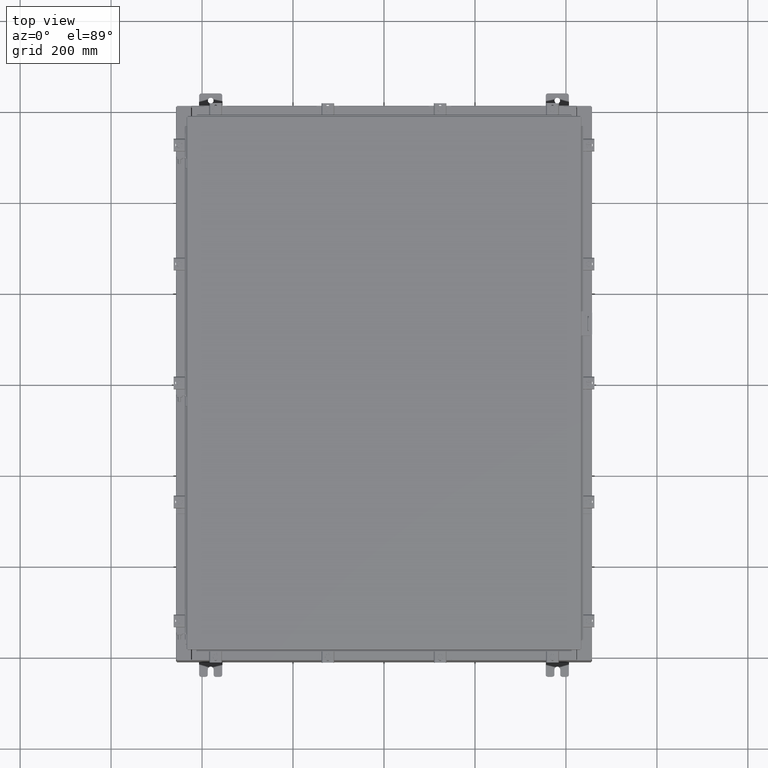
[diagram: clean part render]
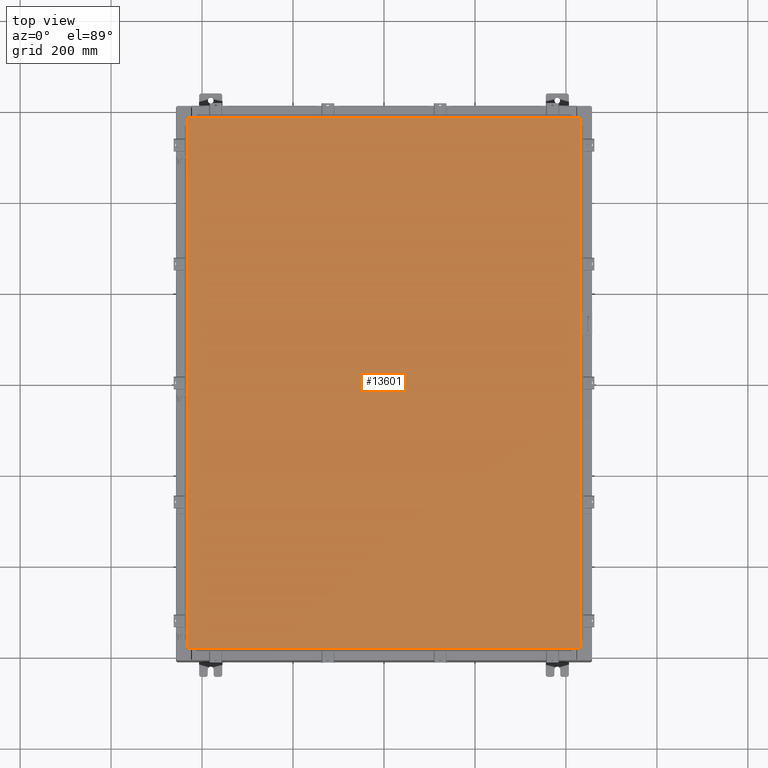
[diagram: same view with one face highlighted and labeled with its STEP entity id]
A machine part, top view. The second image highlights one B-rep face of the part: STEP entity #13601.
In plain terms, the highlighted planar face has unit normal (0, 0, -1).
Its self-contained STEP definition (entity closure, byte-faithful):
#155 = ORIENTED_EDGE ( 'NONE', *, *, #7645, .T. ) ;
#361 = LINE ( 'NONE', #684, #22344 ) ;
#684 = CARTESIAN_POINT ( 'NONE',  ( 16.99030000000000100, -23.00629999999999600, -1.297627796990525000E-015 ) ) ;
#2046 = CARTESIAN_POINT ( 'NONE',  ( 0.0000000000000000000, 0.0000000000000000000, 0.0000000000000000000 ) ) ;
#2130 = VECTOR ( 'NONE', #23517, 39.37007874015748100 ) ;
#3285 = CARTESIAN_POINT ( 'NONE',  ( -16.99029999999999800, 23.00629999999999600, -2.048885995248197400E-016 ) ) ;
#4101 = PLANE ( 'NONE',  #7831 ) ;
#4189 = DIRECTION ( 'NONE',  ( -1.000000000000000000, 0.0000000000000000000, -0.0000000000000000000 ) ) ;
#4313 = CARTESIAN_POINT ( 'NONE',  ( -16.99029999999999800, -23.00630000000000000, 2.014737895327394300E-015 ) ) ;
#4574 = CARTESIAN_POINT ( 'NONE',  ( 16.99029999999999800, 23.00630000000000000, 1.946441695485787500E-015 ) ) ;
#5620 = LINE ( 'NONE', #3285, #16264 ) ;
#7645 = EDGE_CURVE ( 'NONE', #13608, #21080, #11465, .T. ) ;
#7689 = DIRECTION ( 'NONE',  ( 0.0000000000000000000, -1.000000000000000000, 0.0000000000000000000 ) ) ;
#7831 = AXIS2_PLACEMENT_3D ( 'NONE', #2046, #16937, #4189 ) ;
#8164 = ORIENTED_EDGE ( 'NONE', *, *, #16701, .T. ) ;
#8200 = EDGE_LOOP ( 'NONE', ( #23810, #8164, #155, #18867 ) ) ;
#8502 = LINE ( 'NONE', #4313, #2130 ) ;
#8513 = CARTESIAN_POINT ( 'NONE',  ( 16.99029999999999800, 23.00630000000000000, 1.946441695485787500E-015 ) ) ;
#9083 = VERTEX_POINT ( 'NONE', #25300 ) ;
#11465 = LINE ( 'NONE', #4574, #22073 ) ;
#13090 = DIRECTION ( 'NONE',  ( -1.000000000000000000, -0.0000000000000000000, -0.0000000000000000000 ) ) ;
#13601 = ADVANCED_FACE ( 'NONE', ( #15491 ), #4101, .F. ) ;
#13608 = VERTEX_POINT ( 'NONE', #8513 ) ;
#14213 = EDGE_CURVE ( 'NONE', #9083, #22716, #8502, .T. ) ;
#15491 = FACE_OUTER_BOUND ( 'NONE', #8200, .T. ) ;
#16264 = VECTOR ( 'NONE', #7689, 39.37007874015748100 ) ;
#16701 = EDGE_CURVE ( 'NONE', #22716, #13608, #361, .T. ) ;
#16937 = DIRECTION ( 'NONE',  ( 0.0000000000000000000, 0.0000000000000000000, -1.000000000000000000 ) ) ;
#18867 = ORIENTED_EDGE ( 'NONE', *, *, #19716, .T. ) ;
#19441 = CARTESIAN_POINT ( 'NONE',  ( 16.99030000000000100, -23.00629999999999600, -1.297627796990525000E-015 ) ) ;
#19716 = EDGE_CURVE ( 'NONE', #21080, #9083, #5620, .T. ) ;
#21080 = VERTEX_POINT ( 'NONE', #24580 ) ;
#21999 = DIRECTION ( 'NONE',  ( 0.0000000000000000000, 1.000000000000000000, 0.0000000000000000000 ) ) ;
#22073 = VECTOR ( 'NONE', #13090, 39.37007874015748100 ) ;
#22344 = VECTOR ( 'NONE', #21999, 39.37007874015748100 ) ;
#22716 = VERTEX_POINT ( 'NONE', #19441 ) ;
#23517 = DIRECTION ( 'NONE',  ( 1.000000000000000000, -0.0000000000000000000, -0.0000000000000000000 ) ) ;
#23810 = ORIENTED_EDGE ( 'NONE', *, *, #14213, .T. ) ;
#24580 = CARTESIAN_POINT ( 'NONE',  ( -16.99029999999999800, 23.00629999999999600, -2.048885995248197400E-016 ) ) ;
#25300 = CARTESIAN_POINT ( 'NONE',  ( -16.99029999999999800, -23.00630000000000000, 2.014737895327394300E-015 ) ) ;